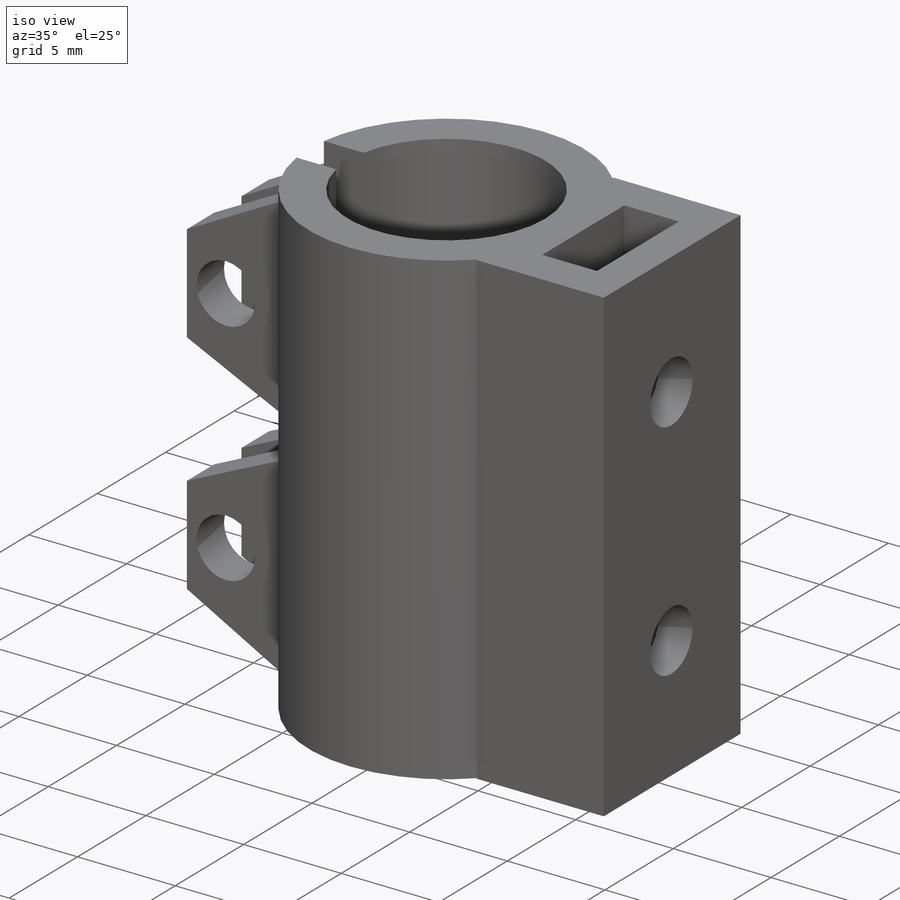
[diagram: iso view]
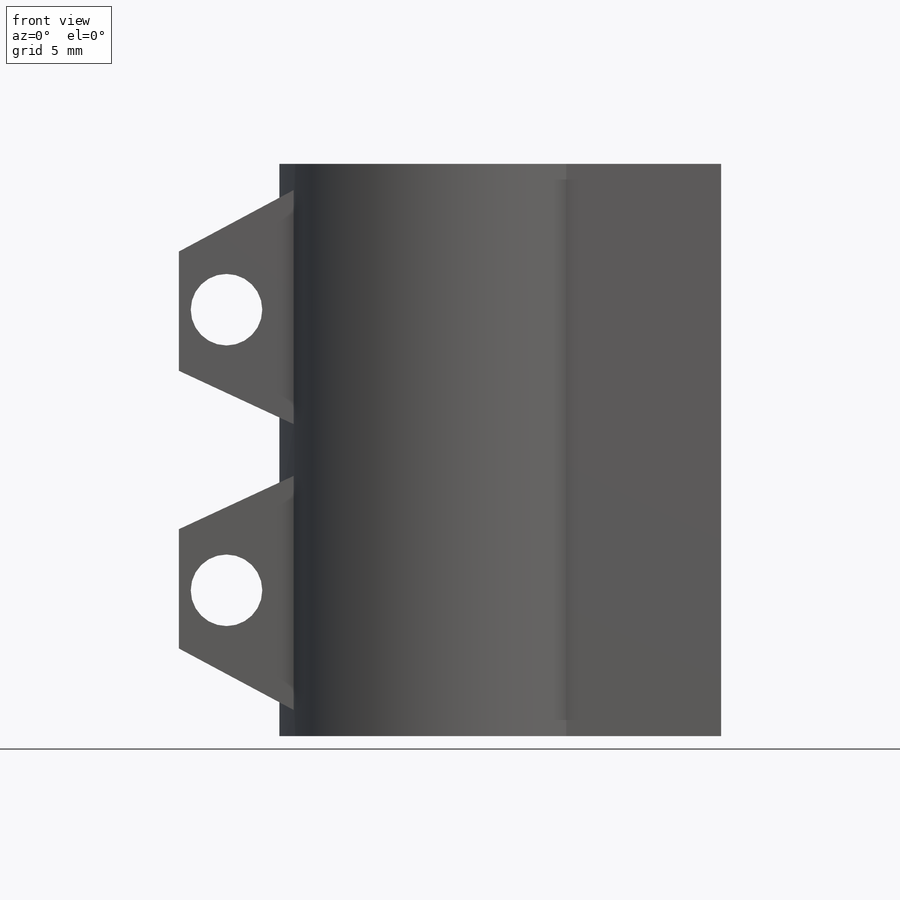
[diagram: front view]
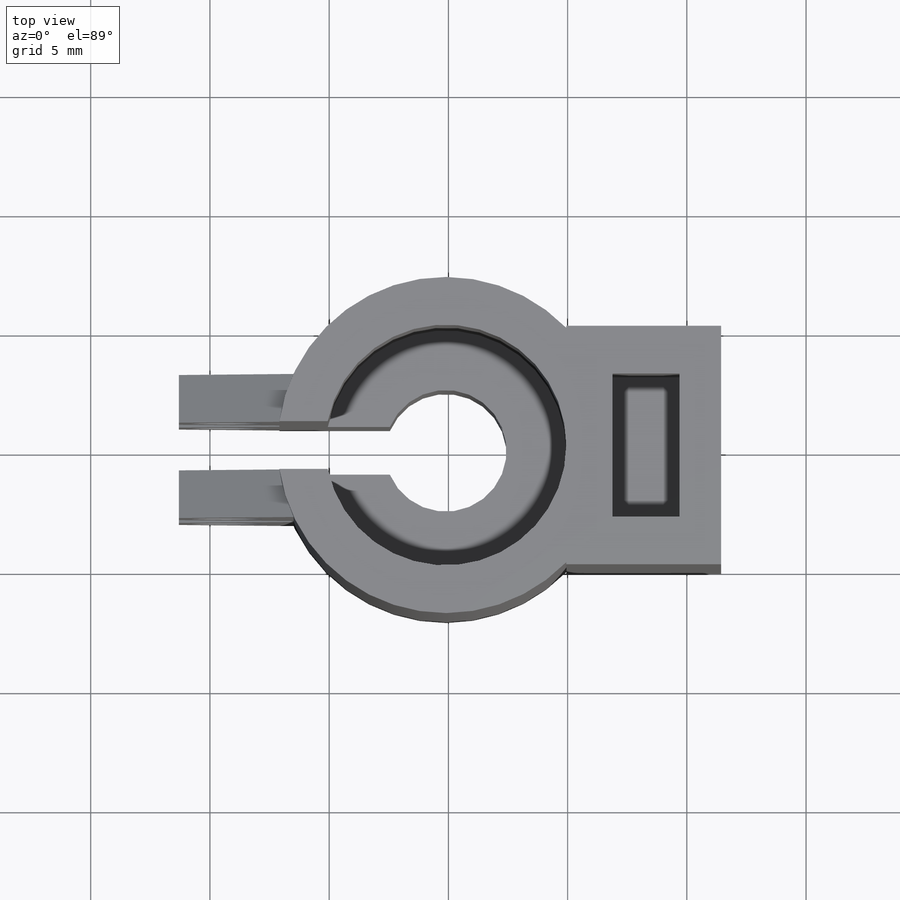
[diagram: top view]
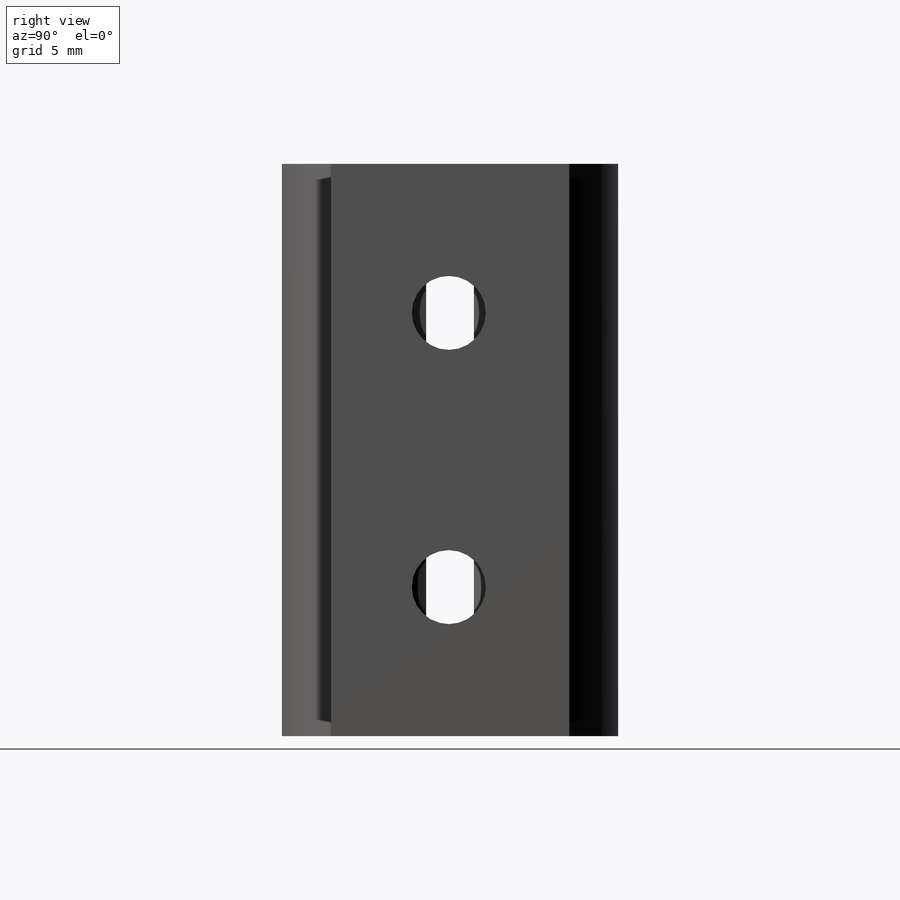
[diagram: right view]
SOLIDWORKS PART (.sldprt)
format: sldprt  version: not decoded by parser v0  size: 276,480 bytes
history: native  units: mm
features: sketch x6, mirror x4, cut_extrude x3, extrude x2, plane x2, material x1, revolve x1 (+13 scaffold rows collapsed)
feature tree (32):
  scaffold x13  (default folders/planes/origin — collapsed)
  material  "Material <not specified>"
  sketch  "Sketch1"  dims[D1=5.05mm D2=2.55mm D3=2.0mm D4=14.0mm D5=10.0mm]
  revolve  "Revolve1"  Angle=360deg
  sketch  "Sketch2"  dims[D1=2.0mm]
  cut_extrude  "Cut-Extrude1"  [1 undecoded]
  sketch  "Sketch3"  dims[D5=3.0mm D1=5.0mm D2=10.0mm D3=1.0mm D4=5.0mm D6=2.0mm]
  extrude  "Boss-Extrude1"  Depth=2mm
  plane  "Plane1"
  mirror  "Mirror1"
  sketch  "Sketch4"  dims[c1.D1=9.5mm c1.D2=4.0mm c2.D1=10.0mm c2.D2=5.0mm c2.D3=6.5mm]
  extrude  "Boss-Extrude2"  [1 undecoded]
  sketch  "Sketch5"  dims[2,8=2.8mm D2=6.0mm D3=7.0mm D1=6.0mm]
  cut_extrude  "Cut-Extrude2"  Depth=9mm
  plane  "Plane2"
  mirror  "Mirror2"
  sketch  "Sketch6"  dims[c1.D1=3.1mm c1.D2=7.0mm c1.D3=~7.485512mm c2.D3=90.0deg c3.D3=5.75mm c3.D4=2.75mm]
  cut_extrude  "Cut-Extrude3"  Depth=10mm
  mirror  "Mirror3"
  mirror  "Mirror4"
decode coverage: 10 of 16 modeling features carry decoded parameters
note: ~ marks probable driven/reference dimensions
note: 2 parameter values undecoded
note: suppression state not decoded; provenance and decode notes live in map.json
